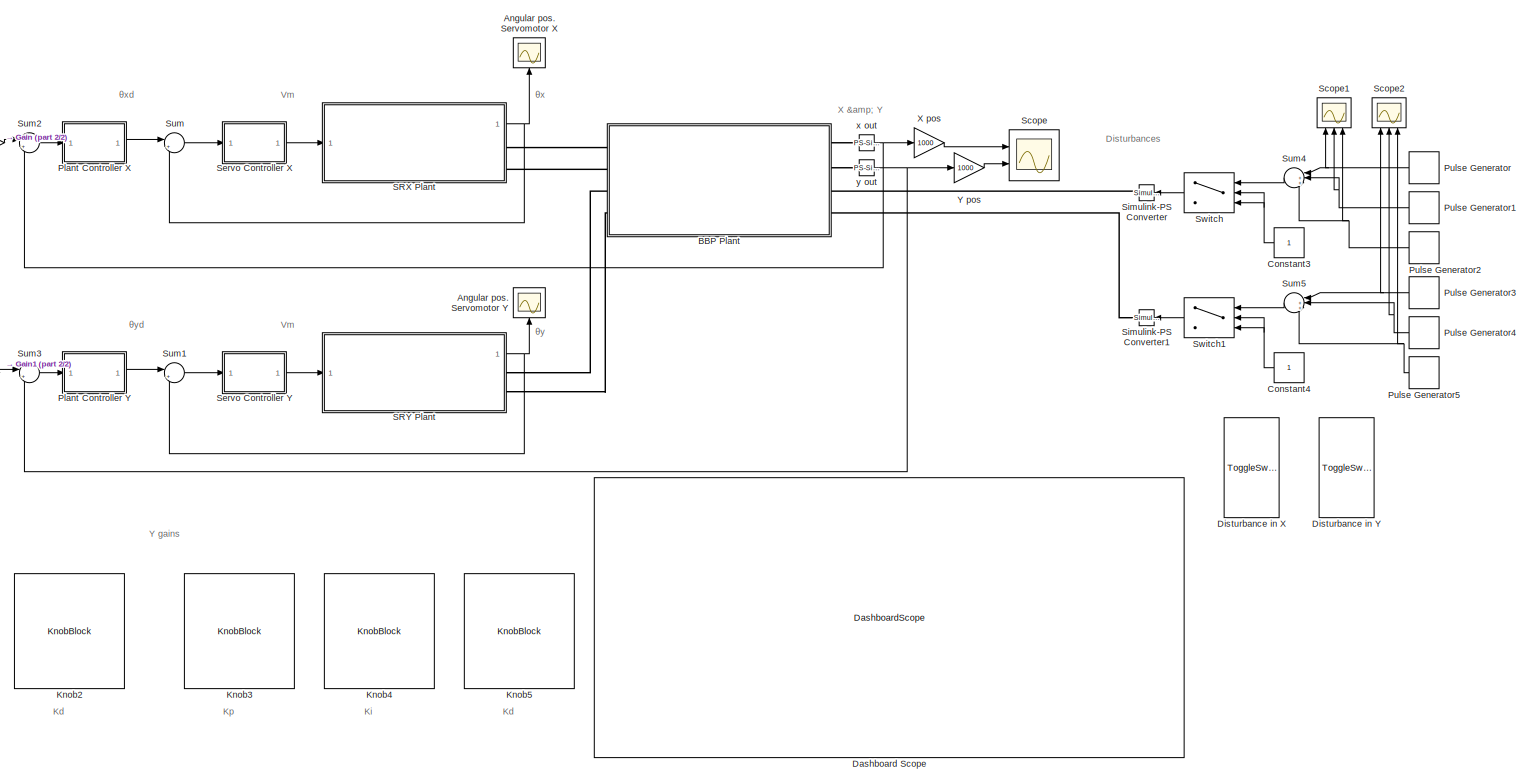
[diagram: root canvas - part 1/2, most of the canvas]
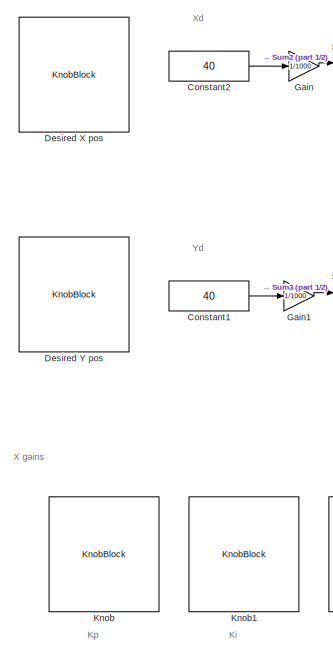
[diagram: root canvas - part 2/2, left side, full height]
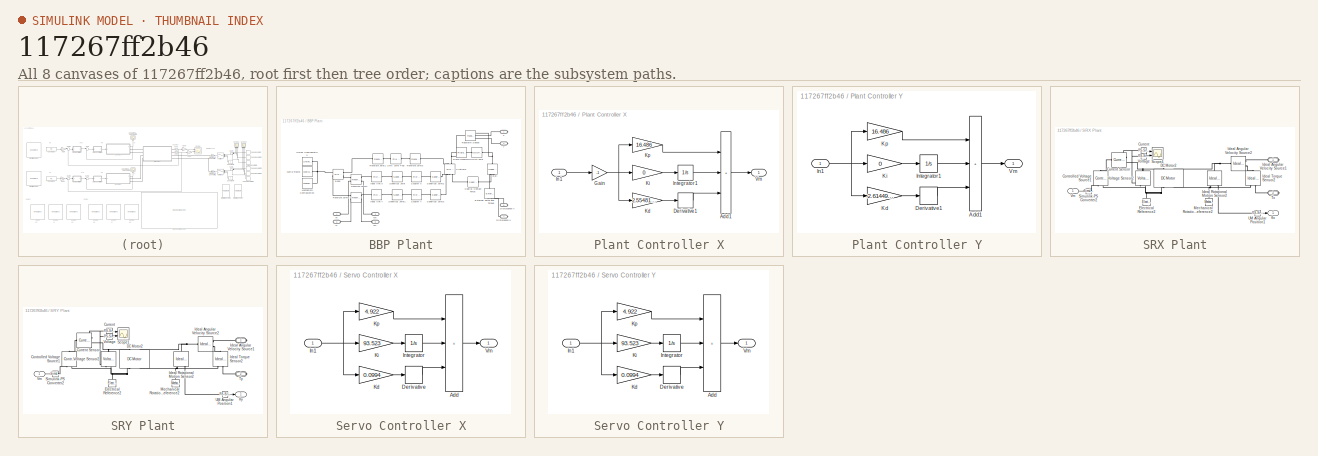
[diagram: thumbnail index - all 8 canvases of the model, root first then tree order]
MODEL slx_117267ff2b46
KIND model
CONFIG AbsTol = 0.1
CONFIG EnableMultiTasking = on
CONFIG FixedStep = auto
CONFIG MaxStep = auto
CONFIG MinStep = auto
CONFIG RelTol = 1e-4
CONFIG SampleTimeConstraint = Unconstrained
CONFIG SolverName = VariableStepAuto
CONFIG StartTime = 0.0
CONFIG StopTime = 15
WORKSPACE source: mxarray member
WORKSPACE Amplitude = 0.02
WORKSPACE amp = 0
WORKSPACE var = 0.02
BLOCK [Scope] Angular pos. Servomotor X
  Floating = off
  NameLocation = right
  NumInputPorts = 1
  Ports = [1]
  ScopeSpecificationString = Simulink.scopes.TimeScopeBlockCfg('CurrentConfiguration', extmgr.ConfigurationSet(extmgr.Configuration('Core','General UI',true),extmgr.Configuration('Core','Source UI',true),extmgr.Configuration('Sources','WiredSimulink',true,'DataLoggingVariableName','ScopeData1'),extmgr.Configuration('Visuals','Time Domain',true,'SerializedDisplays',{struct('MinYLimReal','-0.50508','MaxYLimReal','0.40196','YLab...<+1550ch>
BLOCK [Scope] Angular pos. Servomotor Y
  Floating = off
  NameLocation = right
  NumInputPorts = 1
  Ports = [1]
  ScopeSpecificationString = Simulink.scopes.TimeScopeBlockCfg('CurrentConfiguration', extmgr.ConfigurationSet(extmgr.Configuration('Core','General UI',true),extmgr.Configuration('Core','Source UI',true),extmgr.Configuration('Sources','WiredSimulink',true,'DataLoggingVariableName','ScopeData2'),extmgr.Configuration('Visuals','Time Domain',true,'SerializedDisplays',{struct('MinYLimReal','-0.39028','MaxYLimReal','0.48298','YLab...<+1592ch>
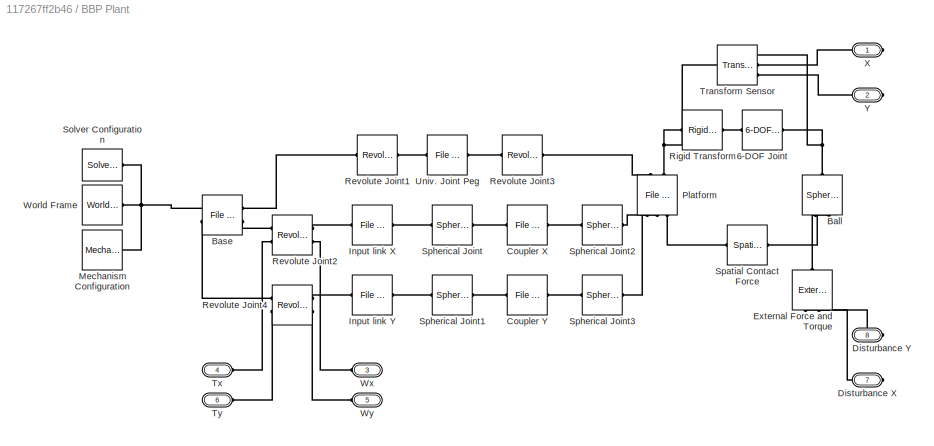
BLOCK [SubSystem] BBP Plant
  Ports = [0, 0, 0, 0, 0, 4, 4]
  RequestExecContextInheritance = off
BLOCK [Reference] BBP Plant/6-DOF Joint  REF=sm_lib/Joints/6-DOF Joint
  Ports = [0, 0, 0, 0, 0, 1, 1]
  SourceBlock = sm_lib/Joints/6-DOF Joint
  SourceProductBaseCode = MS
  SourceType = 6-DOF Joint
BLOCK [Reference] BBP Plant/Ball  REF=sm_lib/Body Elements/Spherical Solid
  NameLocation = right
  Ports = [0, 0, 0, 0, 0, 2, 1]
  SourceBlock = sm_lib/Body Elements/Spherical Solid
  SourceProductBaseCode = MS
  SourceType = Spherical Solid
BLOCK [Reference] BBP Plant/Base  REF=sm_lib/Body Elements/File Solid
  NameLocation = top
  Ports = [0, 0, 0, 0, 0, 2, 2]
  SourceBlock = sm_lib/Body Elements/File Solid
  SourceProductBaseCode = MS
  SourceType = File Solid
BLOCK [Reference] BBP Plant/Coupler X  REF=sm_lib/Body Elements/File Solid
  NameLocation = top
  Ports = [0, 0, 0, 0, 0, 1, 1]
  SourceBlock = sm_lib/Body Elements/File Solid
  SourceProductBaseCode = MS
  SourceType = File Solid
BLOCK [Reference] BBP Plant/Coupler Y  REF=sm_lib/Body Elements/File Solid
  NameLocation = top
  Ports = [0, 0, 0, 0, 0, 1, 1]
  SourceBlock = sm_lib/Body Elements/File Solid
  SourceProductBaseCode = MS
  SourceType = File Solid
BLOCK [PMIOPort] BBP Plant/Disturbance X
  Port = 7
  Side = Right
BLOCK [PMIOPort] BBP Plant/Disturbance Y
  Port = 8
  Side = Right
BLOCK [Reference] BBP Plant/External Force and Torque  REF=sm_lib/Forces and
Torques/External Force
and Torque
  NameLocation = right
  Ports = [0, 0, 0, 0, 0, 2, 1]
  SourceBlock = sm_lib/Forces and\nTorques/External Force\nand Torque
  SourceProductBaseCode = MS
  SourceType = External Force\nand Torque
BLOCK [Reference] BBP Plant/Input link X  REF=sm_lib/Body Elements/File Solid
  NameLocation = top
  Ports = [0, 0, 0, 0, 0, 1, 1]
  SourceBlock = sm_lib/Body Elements/File Solid
  SourceProductBaseCode = MS
  SourceType = File Solid
BLOCK [Reference] BBP Plant/Input link Y  REF=sm_lib/Body Elements/File Solid
  NameLocation = top
  Ports = [0, 0, 0, 0, 0, 1, 1]
  SourceBlock = sm_lib/Body Elements/File Solid
  SourceProductBaseCode = MS
  SourceType = File Solid
BLOCK [Reference] BBP Plant/Mechanism Configuration  REF=sm_lib/Utilities/Mechanism
Configuration
  Ports = [0, 0, 0, 0, 0, 0, 1]
  SourceBlock = sm_lib/Utilities/Mechanism\nConfiguration
  SourceProductName = Multibody
  SourceType = Mechanism\nConfiguration
BLOCK [Reference] BBP Plant/Platform  REF=sm_lib/Body Elements/File Solid
  NameLocation = right
  Ports = [0, 0, 0, 0, 0, 3, 2]
  SourceBlock = sm_lib/Body Elements/File Solid
  SourceProductBaseCode = MS
  SourceType = File Solid
BLOCK [Reference] BBP Plant/Revolute Joint1  REF=sm_lib/Joints/Revolute Joint
  Ports = [0, 0, 0, 0, 0, 1, 1]
  SourceBlock = sm_lib/Joints/Revolute Joint
  SourceProductBaseCode = MS
  SourceType = Revolute Joint
BLOCK [Reference] BBP Plant/Revolute Joint2  REF=sm_lib/Joints/Revolute Joint
  Ports = [0, 0, 0, 0, 0, 2, 2]
  SourceBlock = sm_lib/Joints/Revolute Joint
  SourceProductBaseCode = MS
  SourceType = Revolute Joint
BLOCK [Reference] BBP Plant/Revolute Joint3  REF=sm_lib/Joints/Revolute Joint
  Ports = [0, 0, 0, 0, 0, 1, 1]
  SourceBlock = sm_lib/Joints/Revolute Joint
  SourceProductBaseCode = MS
  SourceType = Revolute Joint
BLOCK [Reference] BBP Plant/Revolute Joint4  REF=sm_lib/Joints/Revolute Joint
  Ports = [0, 0, 0, 0, 0, 2, 2]
  SourceBlock = sm_lib/Joints/Revolute Joint
  SourceProductBaseCode = MS
  SourceType = Revolute Joint
BLOCK [Reference] BBP Plant/Rigid Transform  REF=sm_lib/Frames and
Transforms/Rigid
Transform
  Ports = [0, 0, 0, 0, 0, 1, 1]
  SourceBlock = sm_lib/Frames and\nTransforms/Rigid\nTransform
  SourceProductBaseCode = MS
  SourceType = Rigid\nTransform
BLOCK [Reference] BBP Plant/Solver Configuration  REF=nesl_utility/Solver
Configuration
  Ports = [0, 0, 0, 0, 0, 0, 1]
  SourceBlock = nesl_utility/Solver\nConfiguration
  SourceProductName = Utilities
  SourceType = Solver\nConfiguration
BLOCK [Reference] BBP Plant/Spatial Contact Force  REF=sm_lib/Forces and
Torques/Spatial
Contact Force
  Ports = [0, 0, 0, 0, 0, 1, 1]
  SourceBlock = sm_lib/Forces and\nTorques/Spatial\nContact Force
  SourceProductBaseCode = MS
  SourceType = Spatial\nContact Force
BLOCK [Reference] BBP Plant/Spherical Joint  REF=sm_lib/Joints/Spherical
Joint
  Ports = [0, 0, 0, 0, 0, 1, 1]
  SourceBlock = sm_lib/Joints/Spherical\nJoint
  SourceProductBaseCode = MS
  SourceType = Spherical\nJoint
BLOCK [Reference] BBP Plant/Spherical Joint1  REF=sm_lib/Joints/Spherical
Joint
  Ports = [0, 0, 0, 0, 0, 1, 1]
  SourceBlock = sm_lib/Joints/Spherical\nJoint
  SourceProductBaseCode = MS
  SourceType = Spherical\nJoint
BLOCK [Reference] BBP Plant/Spherical Joint2  REF=sm_lib/Joints/Spherical
Joint
  Ports = [0, 0, 0, 0, 0, 1, 1]
  SourceBlock = sm_lib/Joints/Spherical\nJoint
  SourceProductBaseCode = MS
  SourceType = Spherical\nJoint
BLOCK [Reference] BBP Plant/Spherical Joint3  REF=sm_lib/Joints/Spherical
Joint
  Ports = [0, 0, 0, 0, 0, 1, 1]
  SourceBlock = sm_lib/Joints/Spherical\nJoint
  SourceProductBaseCode = MS
  SourceType = Spherical\nJoint
BLOCK [Reference] BBP Plant/Transform Sensor  REF=sm_lib/Frames and
Transforms/Transform
Sensor
  Ports = [0, 0, 0, 0, 0, 1, 3]
  SourceBlock = sm_lib/Frames and\nTransforms/Transform\nSensor
  SourceProductBaseCode = MS
  SourceType = Transform\nSensor
BLOCK [PMIOPort] BBP Plant/Tx
  Port = 4
  Side = Left
BLOCK [PMIOPort] BBP Plant/Ty
  Port = 6
  Side = Left
BLOCK [Reference] BBP Plant/Univ. Joint Peg  REF=sm_lib/Body Elements/File Solid
  NameLocation = top
  Ports = [0, 0, 0, 0, 0, 1, 1]
  SourceBlock = sm_lib/Body Elements/File Solid
  SourceProductBaseCode = MS
  SourceType = File Solid
BLOCK [Reference] BBP Plant/World Frame  REF=sm_lib/Frames and
Transforms/World Frame
  Ports = [0, 0, 0, 0, 0, 0, 1]
  SourceBlock = sm_lib/Frames and\nTransforms/World Frame
  SourceProductName = Multibody
  SourceType = World Frame
BLOCK [PMIOPort] BBP Plant/Wx
  Port = 3
  Side = Left
BLOCK [PMIOPort] BBP Plant/Wy
  Port = 5
  Side = Left
BLOCK [PMIOPort] BBP Plant/X
  Side = Right
BLOCK [PMIOPort] BBP Plant/Y
  Port = 2
  Side = Right
BLOCK [Constant] Constant1
  Value = 40
BLOCK [Constant] Constant2
  Value = 40
BLOCK [Constant] Constant3
BLOCK [Constant] Constant4
BLOCK [DashboardScope] Dashboard Scope
BLOCK [KnobBlock] Desired X pos
  ScaleMax = 75
  ScaleMin = -75
BLOCK [KnobBlock] Desired Y pos
  ScaleMax = 75
  ScaleMin = -75
BLOCK [ToggleSwitchBlock] Disturbance in X
BLOCK [ToggleSwitchBlock] Disturbance in Y
BLOCK [Gain] Gain
  Gain = 1/1000
BLOCK [Gain] Gain1
  Gain = 1/1000
BLOCK [KnobBlock] Knob
  ScaleMax = 16.486
BLOCK [KnobBlock] Knob1
  ScaleMax = 17.903
BLOCK [KnobBlock] Knob2
  ScaleMax = 7.83
BLOCK [KnobBlock] Knob3
  ScaleMax = 16.486
BLOCK [KnobBlock] Knob4
  ScaleMax = 17.903
BLOCK [KnobBlock] Knob5
  ScaleMax = 7.83
BLOCK [SubSystem] Plant Controller X
  Ports = [1, 1]
  RequestExecContextInheritance = off
BLOCK [Sum] Plant Controller X/Add1
  IconShape = rectangular
  Inputs = +++
  Ports = [3, 1]
BLOCK [Derivative] Plant Controller X/Derivative1
BLOCK [Gain] Plant Controller X/Gain
  Gain = -1
BLOCK [Inport] Plant Controller X/In1
BLOCK [Integrator] Plant Controller X/Integrator1
  Ports = [1, 1]
BLOCK [Gain] Plant Controller X/Kd
  Gain = 2.554810901641845
BLOCK [Gain] Plant Controller X/Ki
  Gain = 0
BLOCK [Gain] Plant Controller X/Kp
  Gain = 16.486
BLOCK [Outport] Plant Controller X/Vm
BLOCK [SubSystem] Plant Controller Y
  Ports = [1, 1]
  RequestExecContextInheritance = off
BLOCK [Sum] Plant Controller Y/Add1
  IconShape = rectangular
  Inputs = +++
  Ports = [3, 1]
BLOCK [Derivative] Plant Controller Y/Derivative1
BLOCK [Inport] Plant Controller Y/In1
BLOCK [Integrator] Plant Controller Y/Integrator1
  Ports = [1, 1]
BLOCK [Gain] Plant Controller Y/Kd
  Gain = 2.614490915679931
BLOCK [Gain] Plant Controller Y/Ki
  Gain = 0
BLOCK [Gain] Plant Controller Y/Kp
  Gain = 16.486
BLOCK [Outport] Plant Controller Y/Vm
BLOCK [DiscretePulseGenerator] Pulse Generator
  Amplitude = 0.02
  Period = 15
  PhaseDelay = 5
  Ports = [0, 1]
  PulseType = Time based
BLOCK [DiscretePulseGenerator] Pulse Generator1
  Amplitude = -0.02
  Period = 15
  PhaseDelay = 7
  Ports = [0, 1]
  PulseType = Time based
BLOCK [DiscretePulseGenerator] Pulse Generator2
  Amplitude = 0.02
  Period = 15
  PhaseDelay = 10
  Ports = [0, 1]
  PulseType = Time based
BLOCK [DiscretePulseGenerator] Pulse Generator3
  Amplitude = -0.02
  Period = 15
  PhaseDelay = 4.8
  Ports = [0, 1]
  PulseType = Time based
BLOCK [DiscretePulseGenerator] Pulse Generator4
  Amplitude = 0.02
  Period = 15
  PhaseDelay = 7.2
  Ports = [0, 1]
  PulseType = Time based
BLOCK [DiscretePulseGenerator] Pulse Generator5
  Amplitude = 0.02
  Period = 15
  PhaseDelay = 10.15
  Ports = [0, 1]
  PulseType = Time based
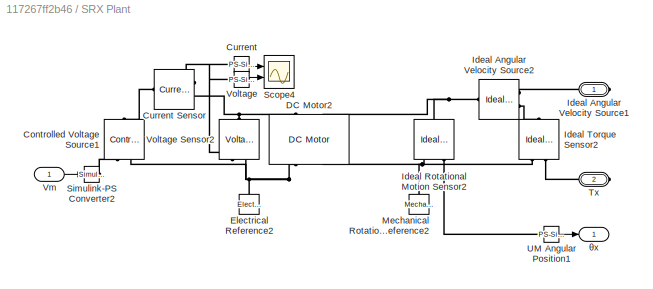
BLOCK [SubSystem] SRX Plant
  Ports = [1, 1, 0, 0, 0, 0, 2]
  RequestExecContextInheritance = off
BLOCK [Reference] SRX Plant/Controlled Voltage Source1  REF=fl_lib/Electrical/Electrical Sources/Controlled Voltage
Source
  NameLocation = right
  Ports = [0, 0, 0, 0, 0, 1, 2]
  SourceBlock = fl_lib/Electrical/Electrical Sources/Controlled Voltage\nSource
  SourceProductBaseCode = SS
  SourceType = Controlled Voltage\nSource
BLOCK [Reference] SRX Plant/Current  REF=nesl_utility/PS-Simulink
Converter
  Ports = [0, 1, 0, 0, 0, 1]
  SourceBlock = nesl_utility/PS-Simulink\nConverter
  SourceProductBaseCode = SS
  SourceType = PS-Simulink\nConverter
BLOCK [Reference] SRX Plant/Current Sensor  REF=fl_lib/Electrical/Electrical Sensors/Current Sensor
  Ports = [0, 0, 0, 0, 0, 1, 2]
  SourceBlock = fl_lib/Electrical/Electrical Sensors/Current Sensor
  SourceProductBaseCode = SS
  SourceType = Current Sensor
BLOCK [Reference] SRX Plant/DC Motor2  REF=ee_lib/Electromechanical/Brushed Motors/DC Motor
  NameLocation = right
  Ports = [0, 0, 0, 0, 0, 2, 2]
  SourceBlock = ee_lib/Electromechanical/Brushed Motors/DC Motor
  SourceProductBaseCode = PS
  SourceType = DC Motor
BLOCK [Reference] SRX Plant/Electrical Reference2  REF=fl_lib/Electrical/Electrical Elements/Electrical Reference
  NameLocation = right
  Ports = [0, 0, 0, 0, 0, 1]
  SourceBlock = fl_lib/Electrical/Electrical Elements/Electrical Reference
  SourceProductBaseCode = SS
  SourceType = Electrical Reference
BLOCK [PMIOPort] SRX Plant/Ideal Angular Velocity Source1
  Side = Right
BLOCK [Reference] SRX Plant/Ideal Angular Velocity Source2  REF=fl_lib/Mechanical/Mechanical Sources/Ideal Angular
Velocity Source
  Ports = [0, 0, 0, 0, 0, 1, 2]
  SourceBlock = fl_lib/Mechanical/Mechanical Sources/Ideal Angular\nVelocity Source
  SourceProductBaseCode = SS
  SourceType = Ideal Angular\nVelocity Source
BLOCK [Reference] SRX Plant/Ideal Rotational Motion Sensor2  REF=fl_lib/Mechanical/Mechanical Sensors/Ideal Rotational
Motion Sensor
  NameLocation = left
  Ports = [0, 0, 0, 0, 0, 1, 3]
  SourceBlock = fl_lib/Mechanical/Mechanical Sensors/Ideal Rotational\nMotion Sensor
  SourceProductBaseCode = SS
  SourceType = Ideal Rotational\nMotion Sensor
BLOCK [Reference] SRX Plant/Ideal Torque Sensor2  REF=fl_lib/Mechanical/Mechanical Sensors/Ideal Torque Sensor
  NameLocation = right
  Ports = [0, 0, 0, 0, 0, 1, 2]
  SourceBlock = fl_lib/Mechanical/Mechanical Sensors/Ideal Torque Sensor
  SourceProductBaseCode = SS
  SourceType = Ideal Torque Sensor
BLOCK [Reference] SRX Plant/Mechanical Rotational Reference2  REF=fl_lib/Mechanical/Rotational Elements/Mechanical
Rotational Reference
  NameLocation = right
  Ports = [0, 0, 0, 0, 0, 1]
  SourceBlock = fl_lib/Mechanical/Rotational Elements/Mechanical\nRotational Reference
  SourceProductBaseCode = SS
  SourceType = Mechanical\nRotational Reference
BLOCK [Scope] SRX Plant/Scope4
  Floating = off
  NumInputPorts = 2
  Ports = [2]
  ScopeSpecificationString = Simulink.scopes.TimeScopeBlockCfg('CurrentConfiguration', extmgr.ConfigurationSet(extmgr.Configuration('Core','General UI',true),extmgr.Configuration('Core','Source UI',true),extmgr.Configuration('Sources','WiredSimulink',true,'DataLoggingVariableName','ScopeData2'),extmgr.Configuration('Visuals','Time Domain',true,'SerializedDisplays',{struct('MinYLimReal','-12.37968','MaxYLimReal','4.21754','YLa...<+2042ch>
BLOCK [Reference] SRX Plant/Simulink-PS Converter2  REF=nesl_utility/Simulink-PS
Converter
  Ports = [1, 0, 0, 0, 0, 0, 1]
  SourceBlock = nesl_utility/Simulink-PS\nConverter
  SourceProductBaseCode = SS
  SourceType = Simulink-PS\nConverter
BLOCK [PMIOPort] SRX Plant/Tx
  Port = 2
  Side = Right
BLOCK [Reference] SRX Plant/UM Angular Position1  REF=nesl_utility/PS-Simulink
Converter
  NameLocation = right
  Ports = [0, 1, 0, 0, 0, 1]
  SourceBlock = nesl_utility/PS-Simulink\nConverter
  SourceProductBaseCode = SS
  SourceType = PS-Simulink\nConverter
BLOCK [Inport] SRX Plant/Vm
BLOCK [Reference] SRX Plant/Voltage  REF=nesl_utility/PS-Simulink
Converter
  Ports = [0, 1, 0, 0, 0, 1]
  SourceBlock = nesl_utility/PS-Simulink\nConverter
  SourceProductBaseCode = SS
  SourceType = PS-Simulink\nConverter
BLOCK [Reference] SRX Plant/Voltage Sensor2  REF=fl_lib/Electrical/Electrical Sensors/Voltage Sensor
  NameLocation = right
  Ports = [0, 0, 0, 0, 0, 1, 2]
  SourceBlock = fl_lib/Electrical/Electrical Sensors/Voltage Sensor
  SourceProductBaseCode = SS
  SourceType = Voltage Sensor
BLOCK [Outport] SRX Plant/θx
BLOCK [SubSystem] SRY Plant
  Ports = [1, 1, 0, 0, 0, 0, 2]
  RequestExecContextInheritance = off
BLOCK [Reference] SRY Plant/Controlled Voltage Source1  REF=fl_lib/Electrical/Electrical Sources/Controlled Voltage
Source
  NameLocation = right
  Ports = [0, 0, 0, 0, 0, 1, 2]
  SourceBlock = fl_lib/Electrical/Electrical Sources/Controlled Voltage\nSource
  SourceProductBaseCode = SS
  SourceType = Controlled Voltage\nSource
BLOCK [Reference] SRY Plant/Current  REF=nesl_utility/PS-Simulink
Converter
  Ports = [0, 1, 0, 0, 0, 1]
  SourceBlock = nesl_utility/PS-Simulink\nConverter
  SourceProductBaseCode = SS
  SourceType = PS-Simulink\nConverter
BLOCK [Reference] SRY Plant/Current Sensor  REF=fl_lib/Electrical/Electrical Sensors/Current Sensor
  Ports = [0, 0, 0, 0, 0, 1, 2]
  SourceBlock = fl_lib/Electrical/Electrical Sensors/Current Sensor
  SourceProductBaseCode = SS
  SourceType = Current Sensor
BLOCK [Reference] SRY Plant/DC Motor2  REF=ee_lib/Electromechanical/Brushed Motors/DC Motor
  NameLocation = right
  Ports = [0, 0, 0, 0, 0, 2, 2]
  SourceBlock = ee_lib/Electromechanical/Brushed Motors/DC Motor
  SourceProductBaseCode = PS
  SourceType = DC Motor
BLOCK [Reference] SRY Plant/Electrical Reference2  REF=fl_lib/Electrical/Electrical Elements/Electrical Reference
  NameLocation = right
  Ports = [0, 0, 0, 0, 0, 1]
  SourceBlock = fl_lib/Electrical/Electrical Elements/Electrical Reference
  SourceProductBaseCode = SS
  SourceType = Electrical Reference
BLOCK [PMIOPort] SRY Plant/Ideal Angular Velocity Source1
  Side = Right
BLOCK [Reference] SRY Plant/Ideal Angular Velocity Source2  REF=fl_lib/Mechanical/Mechanical Sources/Ideal Angular
Velocity Source
  Ports = [0, 0, 0, 0, 0, 1, 2]
  SourceBlock = fl_lib/Mechanical/Mechanical Sources/Ideal Angular\nVelocity Source
  SourceProductBaseCode = SS
  SourceType = Ideal Angular\nVelocity Source
BLOCK [Reference] SRY Plant/Ideal Rotational Motion Sensor2  REF=fl_lib/Mechanical/Mechanical Sensors/Ideal Rotational
Motion Sensor
  NameLocation = left
  Ports = [0, 0, 0, 0, 0, 1, 3]
  SourceBlock = fl_lib/Mechanical/Mechanical Sensors/Ideal Rotational\nMotion Sensor
  SourceProductBaseCode = SS
  SourceType = Ideal Rotational\nMotion Sensor
BLOCK [Reference] SRY Plant/Ideal Torque Sensor2  REF=fl_lib/Mechanical/Mechanical Sensors/Ideal Torque Sensor
  NameLocation = right
  Ports = [0, 0, 0, 0, 0, 1, 2]
  SourceBlock = fl_lib/Mechanical/Mechanical Sensors/Ideal Torque Sensor
  SourceProductBaseCode = SS
  SourceType = Ideal Torque Sensor
BLOCK [Reference] SRY Plant/Mechanical Rotational Reference2  REF=fl_lib/Mechanical/Rotational Elements/Mechanical
Rotational Reference
  NameLocation = right
  Ports = [0, 0, 0, 0, 0, 1]
  SourceBlock = fl_lib/Mechanical/Rotational Elements/Mechanical\nRotational Reference
  SourceProductBaseCode = SS
  SourceType = Mechanical\nRotational Reference
BLOCK [Scope] SRY Plant/Scope1
  Floating = off
  NumInputPorts = 2
  Ports = [2]
  ScopeSpecificationString = Simulink.scopes.TimeScopeBlockCfg('CurrentConfiguration', extmgr.ConfigurationSet(extmgr.Configuration('Core','General UI',true),extmgr.Configuration('Core','Source UI',true),extmgr.Configuration('Sources','WiredSimulink',true,'DataLoggingVariableName','ScopeData3'),extmgr.Configuration('Visuals','Time Domain',true,'SerializedDisplays',{struct('MinYLimReal','-5.58308','MaxYLimReal','14.27996','YLa...<+2011ch>
BLOCK [Reference] SRY Plant/Simulink-PS Converter2  REF=nesl_utility/Simulink-PS
Converter
  Ports = [1, 0, 0, 0, 0, 0, 1]
  SourceBlock = nesl_utility/Simulink-PS\nConverter
  SourceProductBaseCode = SS
  SourceType = Simulink-PS\nConverter
BLOCK [PMIOPort] SRY Plant/Ty
  Port = 2
  Side = Right
BLOCK [Reference] SRY Plant/UM Angular Position1  REF=nesl_utility/PS-Simulink
Converter
  NameLocation = right
  Ports = [0, 1, 0, 0, 0, 1]
  SourceBlock = nesl_utility/PS-Simulink\nConverter
  SourceProductBaseCode = SS
  SourceType = PS-Simulink\nConverter
BLOCK [Inport] SRY Plant/Vm
BLOCK [Reference] SRY Plant/Voltage  REF=nesl_utility/PS-Simulink
Converter
  Ports = [0, 1, 0, 0, 0, 1]
  SourceBlock = nesl_utility/PS-Simulink\nConverter
  SourceProductBaseCode = SS
  SourceType = PS-Simulink\nConverter
BLOCK [Reference] SRY Plant/Voltage Sensor2  REF=fl_lib/Electrical/Electrical Sensors/Voltage Sensor
  NameLocation = right
  Ports = [0, 0, 0, 0, 0, 1, 2]
  SourceBlock = fl_lib/Electrical/Electrical Sensors/Voltage Sensor
  SourceProductBaseCode = SS
  SourceType = Voltage Sensor
BLOCK [Outport] SRY Plant/θy
BLOCK [Scope] Scope
  Floating = off
  NumInputPorts = 2
  Ports = [2]
  ScopeSpecificationString = Simulink.scopes.TimeScopeBlockCfg('CurrentConfiguration', extmgr.ConfigurationSet(extmgr.Configuration('Core','General UI',true,'FigureColor',[1 1 1]),extmgr.Configuration('Core','Source UI',true),extmgr.Configuration('Sources','WiredSimulink',true,'DataLoggingVariableName','ScopeData1'),extmgr.Configuration('Visuals','Time Domain',true,'SerializedDisplays',{struct('MinYLimReal','-7.31418','MaxYLi...<+1662ch>
BLOCK [Scope] Scope1
  Floating = off
  NameLocation = right
  NumInputPorts = 3
  Ports = [3]
  ScopeSpecificationString = Simulink.scopes.TimeScopeBlockCfg('CurrentConfiguration', extmgr.ConfigurationSet(extmgr.Configuration('Core','General UI',true),extmgr.Configuration('Core','Source UI',true),extmgr.Configuration('Sources','WiredSimulink',true,'DataLoggingVariableName','ScopeData1'),extmgr.Configuration('Visuals','Time Domain',true,'SerializedDisplays',{struct('MinYLimReal','-0.025','MaxYLimReal','0.025','YLabelRe...<+1454ch>
BLOCK [Scope] Scope2
  Floating = off
  NameLocation = right
  NumInputPorts = 3
  Ports = [3]
  ScopeSpecificationString = Simulink.scopes.TimeScopeBlockCfg('CurrentConfiguration', extmgr.ConfigurationSet(extmgr.Configuration('Core','General UI',true),extmgr.Configuration('Core','Source UI',true),extmgr.Configuration('Sources','WiredSimulink',true,'DataLoggingVariableName','ScopeData2'),extmgr.Configuration('Visuals','Time Domain',true,'SerializedDisplays',{struct('MinYLimReal','-0.025','MaxYLimReal','0.025','YLabelRe...<+1426ch>
BLOCK [SubSystem] Servo Controller X
  Ports = [1, 1]
  RequestExecContextInheritance = off
BLOCK [Sum] Servo Controller X/Add
  IconShape = rectangular
  Inputs = +++
  Ports = [3, 1]
BLOCK [Derivative] Servo Controller X/Derivative
BLOCK [Inport] Servo Controller X/In1
BLOCK [Integrator] Servo Controller X/Integrator
  Ports = [1, 1]
BLOCK [Gain] Servo Controller X/Kd
  Gain = 0.0994
BLOCK [Gain] Servo Controller X/Ki
  Gain = 93.523
BLOCK [Gain] Servo Controller X/Kp
  Gain = 4.922
BLOCK [Outport] Servo Controller X/Vm
BLOCK [SubSystem] Servo Controller Y
  Ports = [1, 1]
  RequestExecContextInheritance = off
BLOCK [Sum] Servo Controller Y/Add
  IconShape = rectangular
  Inputs = +++
  Ports = [3, 1]
BLOCK [Derivative] Servo Controller Y/Derivative
BLOCK [Inport] Servo Controller Y/In1
BLOCK [Integrator] Servo Controller Y/Integrator
  Ports = [1, 1]
BLOCK [Gain] Servo Controller Y/Kd
  Gain = 0.0994
BLOCK [Gain] Servo Controller Y/Ki
  Gain = 93.523
BLOCK [Gain] Servo Controller Y/Kp
  Gain = 4.922
BLOCK [Outport] Servo Controller Y/Vm
BLOCK [Reference] Simulink-PS Converter  REF=nesl_utility/Simulink-PS
Converter
  Ports = [1, 0, 0, 0, 0, 0, 1]
  SourceBlock = nesl_utility/Simulink-PS\nConverter
  SourceProductBaseCode = SS
  SourceType = Simulink-PS\nConverter
BLOCK [Reference] Simulink-PS Converter1  REF=nesl_utility/Simulink-PS
Converter
  Ports = [1, 0, 0, 0, 0, 0, 1]
  SourceBlock = nesl_utility/Simulink-PS\nConverter
  SourceProductBaseCode = SS
  SourceType = Simulink-PS\nConverter
BLOCK [Sum] Sum
  Inputs = |+-
  Ports = [2, 1]
BLOCK [Sum] Sum1
  Inputs = |+-
  Ports = [2, 1]
BLOCK [Sum] Sum2
  Inputs = |+-
  Ports = [2, 1]
BLOCK [Sum] Sum3
  Inputs = |+-
  Ports = [2, 1]
BLOCK [Sum] Sum4
  Inputs = |+++
  Ports = [3, 1]
BLOCK [Sum] Sum5
  Inputs = |+++
  Ports = [3, 1]
BLOCK [Switch] Switch
  Criteria = u2 > Threshold
  InputSameDT = off
  SaturateOnIntegerOverflow = off
BLOCK [Switch] Switch1
  Criteria = u2 > Threshold
  InputSameDT = off
  SaturateOnIntegerOverflow = off
BLOCK [Gain] X pos
  Gain = 1000
BLOCK [Gain] Y pos
  Gain = 1000
BLOCK [Reference] x out  REF=nesl_utility/PS-Simulink
Converter
  Ports = [0, 1, 0, 0, 0, 1]
  SourceBlock = nesl_utility/PS-Simulink\nConverter
  SourceProductBaseCode = SS
  SourceType = PS-Simulink\nConverter
BLOCK [Reference] y out  REF=nesl_utility/PS-Simulink
Converter
  Ports = [0, 1, 0, 0, 0, 1]
  SourceBlock = nesl_utility/PS-Simulink\nConverter
  SourceProductBaseCode = SS
  SourceType = PS-Simulink\nConverter
ANNOTATION (root): Kd
ANNOTATION (root): Ki
ANNOTATION (root): Kp
ANNOTATION (root): Vm
ANNOTATION (root): X & Y
ANNOTATION (root): Xd
ANNOTATION (root): Yd
ANNOTATION (root): θx
ANNOTATION (root): θxd
ANNOTATION (root): θy
ANNOTATION (root): θyd
ANNOTATION (root): Disturbances
ANNOTATION (root): X gains
ANNOTATION (root): Y gains
LINE Constant1:1 -> Gain1:1
LINE Constant2:1 -> Gain:1
NET Constant3:1 -> Switch:2, Switch:3
NET Constant4:1 -> Switch1:2, Switch1:3
LINE Gain1:1 -> Sum3:1
LINE Gain:1 -> Sum2:1
LINE Plant Controller X/Add1:1 -> Plant Controller X/Vm:1
LINE Plant Controller X/Derivative1:1 -> Plant Controller X/Add1:3
NET Plant Controller X/Gain:1 -> Plant Controller X/Kd:1, Plant Controller X/Ki:1, Plant Controller X/Kp:1
LINE Plant Controller X/In1:1 -> Plant Controller X/Gain:1
LINE Plant Controller X/Integrator1:1 -> Plant Controller X/Add1:2
LINE Plant Controller X/Kd:1 -> Plant Controller X/Derivative1:1
LINE Plant Controller X/Ki:1 -> Plant Controller X/Integrator1:1
LINE Plant Controller X/Kp:1 -> Plant Controller X/Add1:1
LINE Plant Controller X:1 -> Sum:1
LINE Plant Controller Y/Add1:1 -> Plant Controller Y/Vm:1
LINE Plant Controller Y/Derivative1:1 -> Plant Controller Y/Add1:3
NET Plant Controller Y/In1:1 -> Plant Controller Y/Kd:1, Plant Controller Y/Ki:1, Plant Controller Y/Kp:1
LINE Plant Controller Y/Integrator1:1 -> Plant Controller Y/Add1:2
LINE Plant Controller Y/Kd:1 -> Plant Controller Y/Derivative1:1
LINE Plant Controller Y/Ki:1 -> Plant Controller Y/Integrator1:1
LINE Plant Controller Y/Kp:1 -> Plant Controller Y/Add1:1
LINE Plant Controller Y:1 -> Sum1:1
NET Pulse Generator1:1 -> Scope1:2, Sum4:2
NET Pulse Generator2:1 -> Scope1:3, Sum4:3
NET Pulse Generator3:1 -> Scope2:1, Sum5:1
NET Pulse Generator4:1 -> Scope2:2, Sum5:2
NET Pulse Generator5:1 -> Scope2:3, Sum5:3
NET Pulse Generator:1 -> Scope1:1, Sum4:1
LINE SRX Plant/Current:1 -> SRX Plant/Scope4:1
LINE SRX Plant/UM Angular Position1:1 -> SRX Plant/θx:1
LINE SRX Plant/Vm:1 -> SRX Plant/Simulink-PS Converter2:1
LINE SRX Plant/Voltage:1 -> SRX Plant/Scope4:2
NET SRX Plant:1 -> Angular pos. Servomotor X:1, Sum:2
LINE SRY Plant/Current:1 -> SRY Plant/Scope1:1
LINE SRY Plant/UM Angular Position1:1 -> SRY Plant/θy:1
LINE SRY Plant/Vm:1 -> SRY Plant/Simulink-PS Converter2:1
LINE SRY Plant/Voltage:1 -> SRY Plant/Scope1:2
NET SRY Plant:1 -> Angular pos. Servomotor Y:1, Sum1:2
LINE Servo Controller X/Add:1 -> Servo Controller X/Vm:1
LINE Servo Controller X/Derivative:1 -> Servo Controller X/Add:3
NET Servo Controller X/In1:1 -> Servo Controller X/Kd:1, Servo Controller X/Ki:1, Servo Controller X/Kp:1
LINE Servo Controller X/Integrator:1 -> Servo Controller X/Add:2
LINE Servo Controller X/Kd:1 -> Servo Controller X/Derivative:1
LINE Servo Controller X/Ki:1 -> Servo Controller X/Integrator:1
LINE Servo Controller X/Kp:1 -> Servo Controller X/Add:1
LINE Servo Controller X:1 -> SRX Plant:1
LINE Servo Controller Y/Add:1 -> Servo Controller Y/Vm:1
LINE Servo Controller Y/Derivative:1 -> Servo Controller Y/Add:3
NET Servo Controller Y/In1:1 -> Servo Controller Y/Kd:1, Servo Controller Y/Ki:1, Servo Controller Y/Kp:1
LINE Servo Controller Y/Integrator:1 -> Servo Controller Y/Add:2
LINE Servo Controller Y/Kd:1 -> Servo Controller Y/Derivative:1
LINE Servo Controller Y/Ki:1 -> Servo Controller Y/Integrator:1
LINE Servo Controller Y/Kp:1 -> Servo Controller Y/Add:1
LINE Servo Controller Y:1 -> SRY Plant:1
LINE Sum1:1 -> Servo Controller Y:1
LINE Sum2:1 -> Plant Controller X:1
LINE Sum3:1 -> Plant Controller Y:1
LINE Sum4:1 -> Switch:1
LINE Sum5:1 -> Switch1:1
LINE Sum:1 -> Servo Controller X:1
LINE Switch1:1 -> Simulink-PS Converter1:1
LINE Switch:1 -> Simulink-PS Converter:1
LINE X pos:1 -> Scope:1
LINE Y pos:1 -> Scope:2
NET x out:1 -> Sum2:2, X pos:1
NET y out:1 -> Sum3:2, Y pos:1
PLINE BBP Plant/6-DOF Joint:LConn1 -- BBP Plant/Rigid Transform:RConn1
PNET net1: BBP Plant/6-DOF Joint:RConn1 -- BBP Plant/Ball:RConn1 -- BBP Plant/Transform Sensor:RConn1
PLINE BBP Plant/Ball:LConn1 -- BBP Plant/External Force and Torque:RConn1
PLINE BBP Plant/Ball:LConn2 -- BBP Plant/Spatial Contact Force:RConn1
PLINE BBP Plant/Base:LConn1 -- BBP Plant/Revolute Joint1:LConn1
PLINE BBP Plant/Base:LConn2 -- BBP Plant/Revolute Joint2:LConn1
PNET net2: BBP Plant/Base:RConn1 -- BBP Plant/Mechanism Configuration:RConn1 -- BBP Plant/Solver Configuration:RConn1 -- BBP Plant/World Frame:RConn1
PLINE BBP Plant/Base:RConn2 -- BBP Plant/Revolute Joint4:LConn1
PLINE BBP Plant/Coupler X:LConn1 -- BBP Plant/Spherical Joint2:LConn1
PLINE BBP Plant/Coupler X:RConn1 -- BBP Plant/Spherical Joint:RConn1
PLINE BBP Plant/Coupler Y:LConn1 -- BBP Plant/Spherical Joint3:LConn1
PLINE BBP Plant/Coupler Y:RConn1 -- BBP Plant/Spherical Joint1:RConn1
PLINE BBP Plant/Disturbance X:RConn1 -- BBP Plant/External Force and Torque:LConn1
PLINE BBP Plant/Disturbance Y:RConn1 -- BBP Plant/External Force and Torque:LConn2
PLINE BBP Plant/Input link X:LConn1 -- BBP Plant/Spherical Joint:LConn1
PLINE BBP Plant/Input link X:RConn1 -- BBP Plant/Revolute Joint2:RConn1
PLINE BBP Plant/Input link Y:LConn1 -- BBP Plant/Spherical Joint1:LConn1
PLINE BBP Plant/Input link Y:RConn1 -- BBP Plant/Revolute Joint4:RConn1
PLINE BBP Plant/Platform:LConn1 -- BBP Plant/Spherical Joint2:RConn1
PLINE BBP Plant/Platform:LConn2 -- BBP Plant/Spherical Joint3:RConn1
PLINE BBP Plant/Platform:LConn3 -- BBP Plant/Spatial Contact Force:LConn1
PLINE BBP Plant/Platform:RConn1 -- BBP Plant/Revolute Joint3:RConn1
PNET net3: BBP Plant/Platform:RConn2 -- BBP Plant/Rigid Transform:LConn1 -- BBP Plant/Transform Sensor:LConn1
PLINE BBP Plant/Revolute Joint1:RConn1 -- BBP Plant/Univ. Joint Peg:RConn1
PLINE BBP Plant/Revolute Joint2:LConn2 -- BBP Plant/Tx:RConn1
PLINE BBP Plant/Revolute Joint2:RConn2 -- BBP Plant/Wx:RConn1
PLINE BBP Plant/Revolute Joint3:LConn1 -- BBP Plant/Univ. Joint Peg:LConn1
PLINE BBP Plant/Revolute Joint4:LConn2 -- BBP Plant/Ty:RConn1
PLINE BBP Plant/Revolute Joint4:RConn2 -- BBP Plant/Wy:RConn1
PLINE BBP Plant/Transform Sensor:RConn2 -- BBP Plant/X:RConn1
PLINE BBP Plant/Transform Sensor:RConn3 -- BBP Plant/Y:RConn1
PLINE BBP Plant:LConn1 -- SRX Plant:RConn1
PLINE BBP Plant:LConn2 -- SRX Plant:RConn2
PLINE BBP Plant:LConn3 -- SRY Plant:RConn1
PLINE BBP Plant:LConn4 -- SRY Plant:RConn2
PLINE BBP Plant:RConn1 -- x out:LConn1
PLINE BBP Plant:RConn2 -- y out:LConn1
PLINE BBP Plant:RConn3 -- Simulink-PS Converter:RConn1
PLINE BBP Plant:RConn4 -- Simulink-PS Converter1:RConn1
PLINE SRX Plant/Controlled Voltage Source1:LConn1 -- SRX Plant/Current Sensor:LConn1
PLINE SRX Plant/Controlled Voltage Source1:RConn1 -- SRX Plant/Simulink-PS Converter2:RConn1
PNET net4: SRX Plant/Controlled Voltage Source1:RConn2 -- SRX Plant/DC Motor2:RConn1 -- SRX Plant/Electrical Reference2:LConn1 -- SRX Plant/Voltage Sensor2:RConn2
PLINE SRX Plant/Current Sensor:RConn1 -- SRX Plant/Current:LConn1
PNET net5: SRX Plant/Current Sensor:RConn2 -- SRX Plant/DC Motor2:LConn1 -- SRX Plant/Voltage Sensor2:LConn1
PNET net6: SRX Plant/DC Motor2:LConn2 -- SRX Plant/Ideal Angular Velocity Source2:LConn1 -- SRX Plant/Ideal Rotational Motion Sensor2:LConn1
PNET net7: SRX Plant/DC Motor2:RConn2 -- SRX Plant/Ideal Rotational Motion Sensor2:RConn1 -- SRX Plant/Ideal Torque Sensor2:RConn1 -- SRX Plant/Mechanical Rotational Reference2:LConn1
PLINE SRX Plant/Ideal Angular Velocity Source1:RConn1 -- SRX Plant/Ideal Angular Velocity Source2:RConn1
PLINE SRX Plant/Ideal Angular Velocity Source2:RConn2 -- SRX Plant/Ideal Torque Sensor2:LConn1
PLINE SRX Plant/Ideal Rotational Motion Sensor2:RConn3 -- SRX Plant/UM Angular Position1:LConn1
PLINE SRX Plant/Ideal Torque Sensor2:RConn2 -- SRX Plant/Tx:RConn1
PLINE SRX Plant/Voltage Sensor2:RConn1 -- SRX Plant/Voltage:LConn1
PLINE SRY Plant/Controlled Voltage Source1:LConn1 -- SRY Plant/Current Sensor:LConn1
PLINE SRY Plant/Controlled Voltage Source1:RConn1 -- SRY Plant/Simulink-PS Converter2:RConn1
PNET net8: SRY Plant/Controlled Voltage Source1:RConn2 -- SRY Plant/DC Motor2:RConn1 -- SRY Plant/Electrical Reference2:LConn1 -- SRY Plant/Voltage Sensor2:RConn2
PLINE SRY Plant/Current Sensor:RConn1 -- SRY Plant/Current:LConn1
PNET net9: SRY Plant/Current Sensor:RConn2 -- SRY Plant/DC Motor2:LConn1 -- SRY Plant/Voltage Sensor2:LConn1
PNET net10: SRY Plant/DC Motor2:LConn2 -- SRY Plant/Ideal Angular Velocity Source2:LConn1 -- SRY Plant/Ideal Rotational Motion Sensor2:LConn1
PNET net11: SRY Plant/DC Motor2:RConn2 -- SRY Plant/Ideal Rotational Motion Sensor2:RConn1 -- SRY Plant/Ideal Torque Sensor2:RConn1 -- SRY Plant/Mechanical Rotational Reference2:LConn1
PLINE SRY Plant/Ideal Angular Velocity Source1:RConn1 -- SRY Plant/Ideal Angular Velocity Source2:RConn1
PLINE SRY Plant/Ideal Angular Velocity Source2:RConn2 -- SRY Plant/Ideal Torque Sensor2:LConn1
PLINE SRY Plant/Ideal Rotational Motion Sensor2:RConn3 -- SRY Plant/UM Angular Position1:LConn1
PLINE SRY Plant/Ideal Torque Sensor2:RConn2 -- SRY Plant/Ty:RConn1
PLINE SRY Plant/Voltage Sensor2:RConn1 -- SRY Plant/Voltage:LConn1
note: NET lines group one-source signal fan-out (src -> all destinations, sorted); 1:1 wires keep LINE; PNET lines group multi-terminal physical nets as a canonical sorted terminal list (undirected conserving connections); 2-terminal nets keep the pairwise PLINE form
